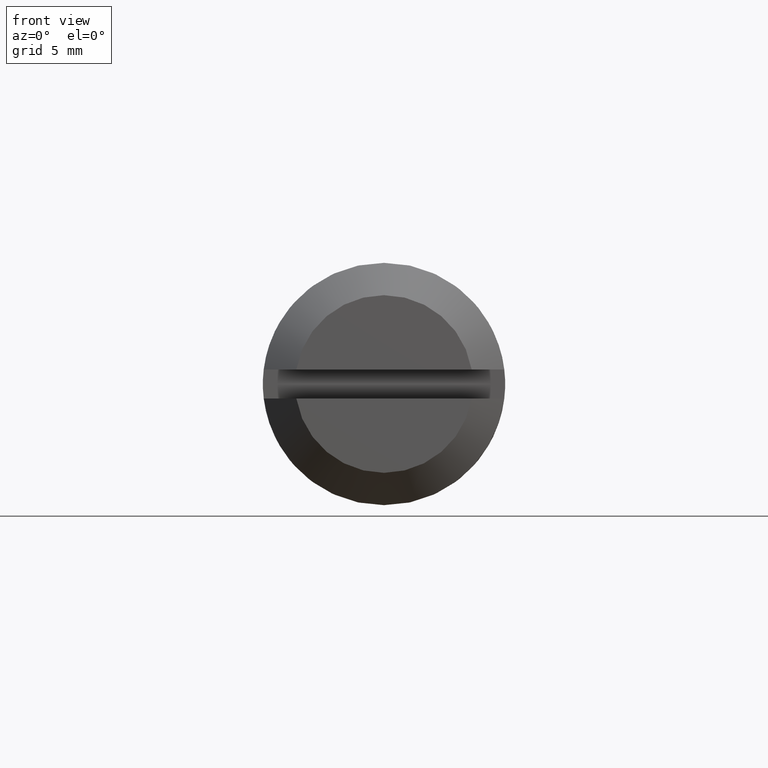
[diagram: clean part render]
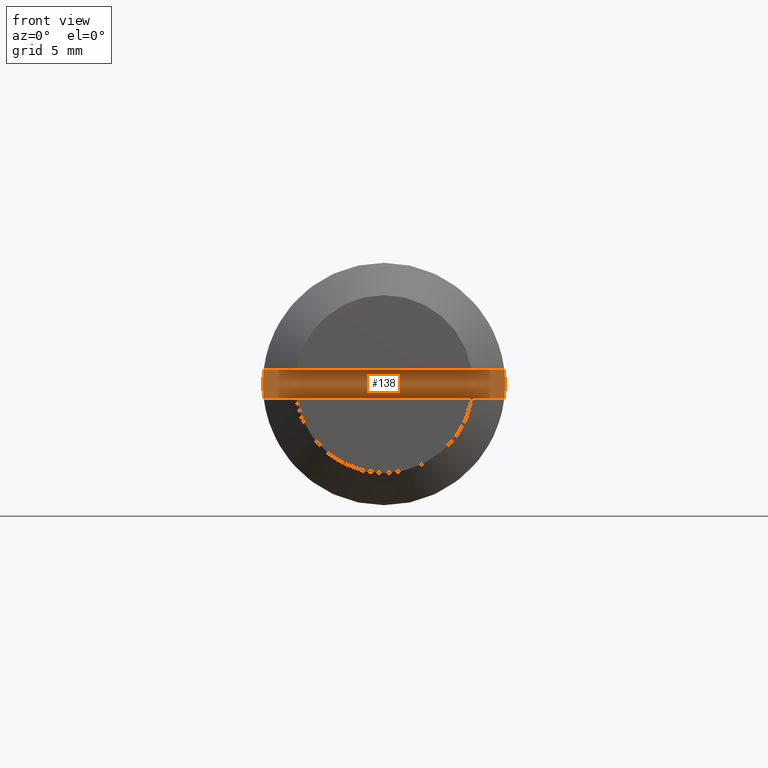
[diagram: same view with one face highlighted and labeled with its STEP entity id]
A machine part, front view. The second image highlights one B-rep face of the part: STEP entity #138.
In plain terms, the highlighted planar face has unit normal (0, -1, 0).
Its self-contained STEP definition (entity closure, byte-faithful):
#138=ADVANCED_FACE('',(#420),#419,.T.);
#419=PLANE('',#717);
#420=FACE_OUTER_BOUND('',#718,.T.);
#714=CARTESIAN_POINT('',(-7.99990000000E+00,-9.06550834529E+00,-1.08000000000E+00));
#715=DIRECTION('',(-1.00000000000E+00,0.00000000000E+00,0.00000000000E+00));
#716=DIRECTION('',(0.00000000000E+00,0.00000000000E+00,1.00000000000E+00));
#717=AXIS2_PLACEMENT_3D('',#714,#715,#716);
#718=EDGE_LOOP('',(#958,#959,#960,#961));
#958=ORIENTED_EDGE('',*,*,#1097,.F.);
#959=ORIENTED_EDGE('',*,*,#1099,.F.);
#960=ORIENTED_EDGE('',*,*,#1100,.T.);
#961=ORIENTED_EDGE('',*,*,#1101,.F.);
#1097=EDGE_CURVE('',#1596,#1603,#1604,.T.);
#1099=EDGE_CURVE('',#1616,#1596,#1617,.T.);
#1100=EDGE_CURVE('',#1616,#1623,#1624,.T.);
#1101=EDGE_CURVE('',#1603,#1623,#1630,.T.);
#1596=VERTEX_POINT('',#2069);
#1603=VERTEX_POINT('',#2074);
#1604=LINE('',#2075,#2076);
#1616=VERTEX_POINT('',#2082);
#1617=CIRCLE('',#2086,7.50000000000E+00);
#1623=VERTEX_POINT('',#2087);
#1624=LINE('',#2088,#2089);
#1630=CIRCLE('',#2094,7.50000000000E+00);
#2069=CARTESIAN_POINT('',(-7.99990000000E+00,7.44580418759E+00,9.00000000000E-01));
#2074=CARTESIAN_POINT('',(-7.99990000000E+00,-7.44580418759E+00,9.00000000000E-01));
#2075=CARTESIAN_POINT('',(-7.99990000000E+00,7.44580418759E+00,9.00000000000E-01));
#2076=VECTOR('',#2077,1.48916083752E+01);
#2077=DIRECTION('',(0.00000000000E+00,-1.00000000000E+00,0.00000000000E+00));
#2082=CARTESIAN_POINT('',(-7.99990000000E+00,7.44580418759E+00,-9.00000000000E-01));
#2083=CARTESIAN_POINT('',(-7.99990000000E+00,0.00000000000E+00,0.00000000000E+00));
#2084=DIRECTION('',(1.00000000000E+00,0.00000000000E+00,-0.00000000000E+00));
#2085=DIRECTION('',(-0.00000000000E+00,-0.00000000000E+00,-1.00000000000E+00));
#2086=AXIS2_PLACEMENT_3D('',#2083,#2084,#2085);
#2087=CARTESIAN_POINT('',(-7.99990000000E+00,-7.44580418759E+00,-9.00000000000E-01));
#2088=CARTESIAN_POINT('',(-7.99990000000E+00,7.44580418759E+00,-9.00000000000E-01));
#2089=VECTOR('',#2090,1.48916083752E+01);
#2090=DIRECTION('',(0.00000000000E+00,-1.00000000000E+00,0.00000000000E+00));
#2091=CARTESIAN_POINT('',(-7.99990000000E+00,0.00000000000E+00,0.00000000000E+00));
#2092=DIRECTION('',(1.00000000000E+00,0.00000000000E+00,-0.00000000000E+00));
#2093=DIRECTION('',(-0.00000000000E+00,-0.00000000000E+00,-1.00000000000E+00));
#2094=AXIS2_PLACEMENT_3D('',#2091,#2092,#2093);